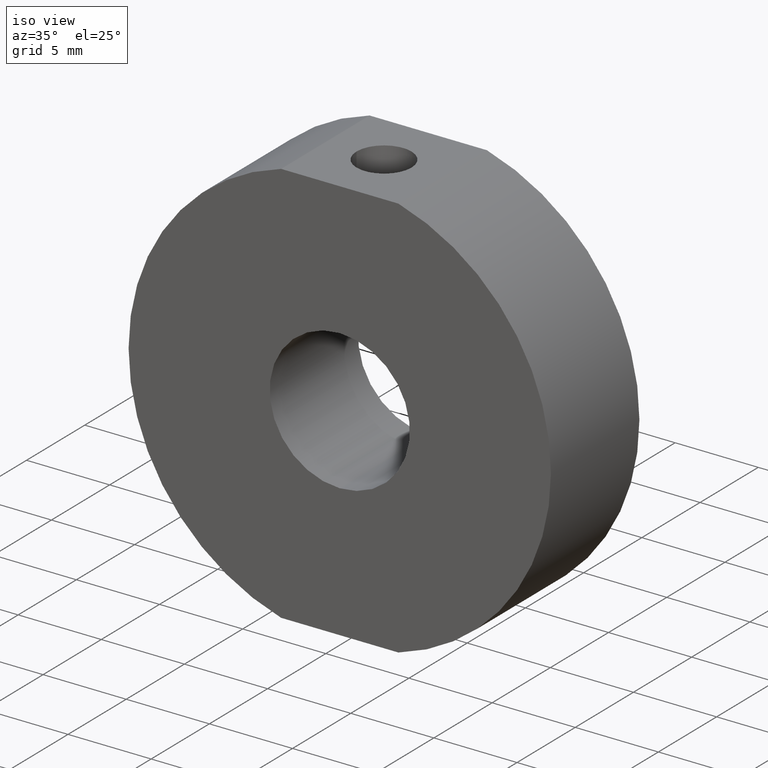
[diagram: clean part render]
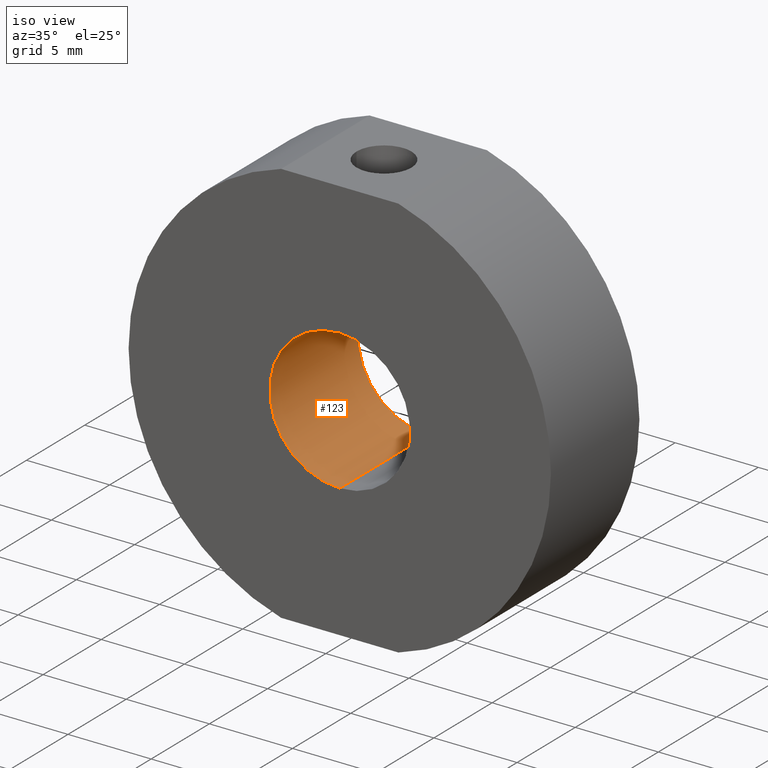
[diagram: same view with one face highlighted and labeled with its STEP entity id]
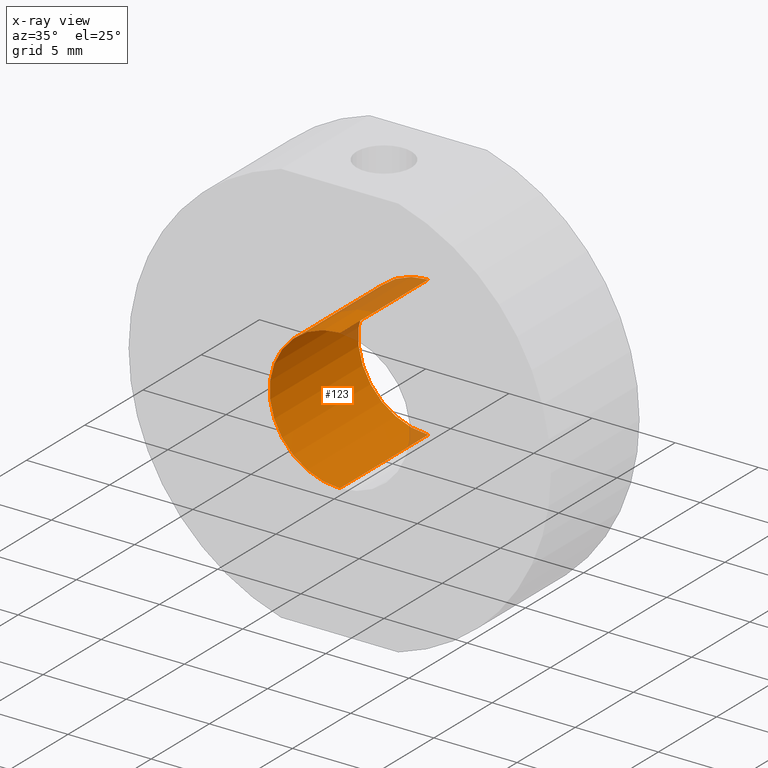
[diagram: x-ray of the same camera — body ghosted, the highlighted face saturated]
A machine part, iso view. The second image highlights one B-rep face of the part: STEP entity #123.
The next image is the same camera in x-ray: the body ghosted, the highlighted face saturated — about 9% of this face is hidden behind the body in this view.
In plain terms, the highlighted cylindrical surface (partial cylindrical patch) has radius 4.2164 mm, axis along (-0, 1, -0).
Its self-contained STEP definition (entity closure, byte-faithful):
#18 = DIRECTION ( 'NONE',  ( -0.0000000000000000000, 1.000000000000000000, -0.0000000000000000000 ) ) ;
#19 = DIRECTION ( 'NONE',  ( -0.0000000000000000000, 1.000000000000000000, -0.0000000000000000000 ) ) ;
#33 = CARTESIAN_POINT ( 'NONE',  ( 0.0000000000000000000, 3.800000000000000700, 0.0000000000000000000 ) ) ;
#49 = AXIS2_PLACEMENT_3D ( 'NONE', #33, #522, #271 ) ;
#69 = LINE ( 'NONE', #142, #483 ) ;
#70 = CARTESIAN_POINT ( 'NONE',  ( 5.163600763924892400E-016, 3.799999999999999800, -4.216399999999993000 ) ) ;
#85 = CIRCLE ( 'NONE', #49, 4.216399999999988600 ) ;
#112 = CIRCLE ( 'NONE', #118, 4.216399999999998400 ) ;
#118 = AXIS2_PLACEMENT_3D ( 'NONE', #374, #260, #292 ) ;
#123 = ADVANCED_FACE ( 'NONE', ( #424 ), #179, .F. ) ;
#142 = CARTESIAN_POINT ( 'NONE',  ( 0.0000000000000000000, 3.799999999999999800, 4.216399999999993000 ) ) ;
#146 = CARTESIAN_POINT ( 'NONE',  ( 0.0000000000000000000, -3.799999999999998900, 4.216399999999998400 ) ) ;
#164 = EDGE_CURVE ( 'NONE', #310, #453, #112, .T. ) ;
#177 = CARTESIAN_POINT ( 'NONE',  ( 5.163600763924899300E-016, -3.799999999999998900, -4.216399999999998400 ) ) ;
#179 = CYLINDRICAL_SURFACE ( 'NONE', #467, 4.216399999999993000 ) ;
#190 = EDGE_CURVE ( 'NONE', #477, #262, #85, .T. ) ;
#204 = LINE ( 'NONE', #70, #329 ) ;
#237 = ORIENTED_EDGE ( 'NONE', *, *, #335, .F. ) ;
#260 = DIRECTION ( 'NONE',  ( -0.0000000000000000000, 1.000000000000000000, -0.0000000000000000000 ) ) ;
#262 = VERTEX_POINT ( 'NONE', #520 ) ;
#264 = CARTESIAN_POINT ( 'NONE',  ( 0.0000000000000000000, 3.799999999999999800, 0.0000000000000000000 ) ) ;
#271 = DIRECTION ( 'NONE',  ( 0.0000000000000000000, 0.0000000000000000000, 1.000000000000000000 ) ) ;
#279 = ORIENTED_EDGE ( 'NONE', *, *, #368, .T. ) ;
#292 = DIRECTION ( 'NONE',  ( 0.0000000000000000000, 0.0000000000000000000, 1.000000000000000000 ) ) ;
#298 = DIRECTION ( 'NONE',  ( -0.0000000000000000000, 1.000000000000000000, -0.0000000000000000000 ) ) ;
#310 = VERTEX_POINT ( 'NONE', #177 ) ;
#321 = ORIENTED_EDGE ( 'NONE', *, *, #190, .T. ) ;
#329 = VECTOR ( 'NONE', #298, 1000.000000000000000 ) ;
#335 = EDGE_CURVE ( 'NONE', #453, #262, #69, .T. ) ;
#368 = EDGE_CURVE ( 'NONE', #310, #477, #204, .T. ) ;
#371 = EDGE_LOOP ( 'NONE', ( #469, #279, #321, #237 ) ) ;
#374 = CARTESIAN_POINT ( 'NONE',  ( 0.0000000000000000000, -3.799999999999998900, 0.0000000000000000000 ) ) ;
#424 = FACE_OUTER_BOUND ( 'NONE', #371, .T. ) ;
#453 = VERTEX_POINT ( 'NONE', #146 ) ;
#466 = DIRECTION ( 'NONE',  ( 0.0000000000000000000, 0.0000000000000000000, 1.000000000000000000 ) ) ;
#467 = AXIS2_PLACEMENT_3D ( 'NONE', #264, #19, #466 ) ;
#468 = CARTESIAN_POINT ( 'NONE',  ( 5.163600763924888500E-016, 3.800000000000000700, -4.216399999999988600 ) ) ;
#469 = ORIENTED_EDGE ( 'NONE', *, *, #164, .F. ) ;
#477 = VERTEX_POINT ( 'NONE', #468 ) ;
#483 = VECTOR ( 'NONE', #18, 1000.000000000000000 ) ;
#520 = CARTESIAN_POINT ( 'NONE',  ( 0.0000000000000000000, 3.800000000000000700, 4.216399999999988600 ) ) ;
#522 = DIRECTION ( 'NONE',  ( -0.0000000000000000000, 1.000000000000000000, -0.0000000000000000000 ) ) ;